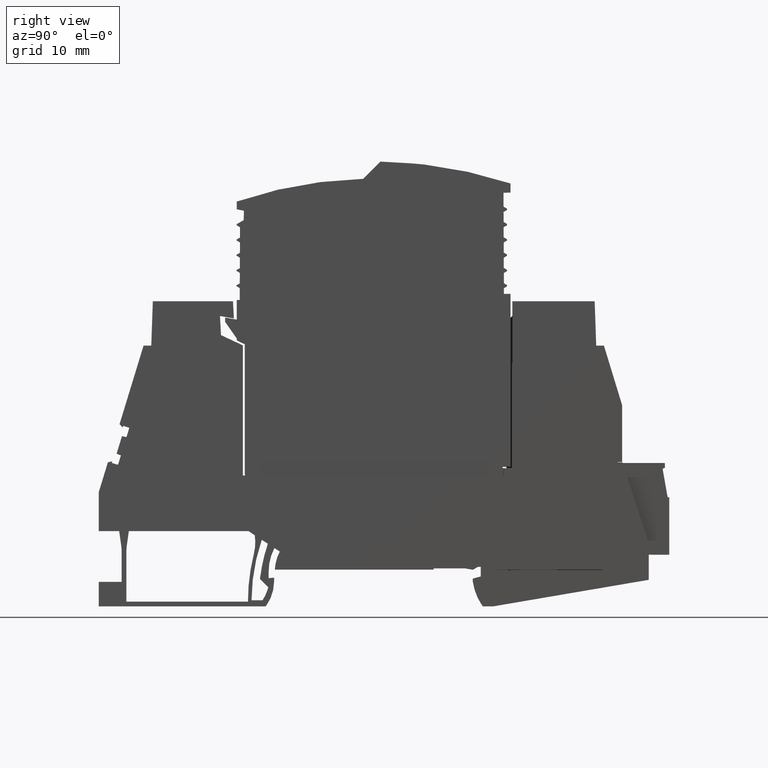
[diagram: clean part render]
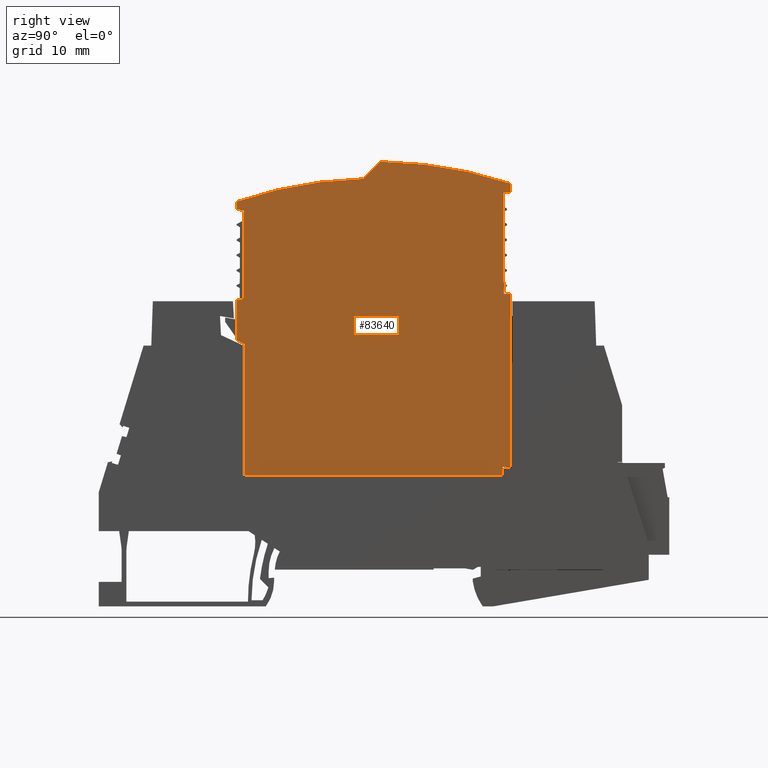
[diagram: same view with one face highlighted and labeled with its STEP entity id]
A machine part, right view. The second image highlights one B-rep face of the part: STEP entity #83640.
In plain terms, the highlighted planar face has unit normal (-1, 0, -0).
Its self-contained STEP definition (entity closure, byte-faithful):
#6830=CARTESIAN_POINT('',(91.7535475959083,81.3818938224016,
-51.096798506925));
#6840=VERTEX_POINT('',#6830);
#7020=CARTESIAN_POINT('',(71.0895625795459,85.097198471085,
-51.0967985078335));
#7030=VERTEX_POINT('',#7020);
#7060=CARTESIAN_POINT('',(69.353547596541,16.1190406819792,
-51.0967985079098));
#7070=DIRECTION('',(-4.39608349825762E-11,-8.17233597831012E-17,1.));
#7080=DIRECTION('',(1.,-3.66047483845538E-27,4.39608349825762E-11));
#7090=AXIS2_PLACEMENT_3D('',#7060,#7070,#7080);
#7100=CIRCLE('',#7090,69.);
#7110=EDGE_CURVE('',#6840,#7030,#7100,.T.);
#7280=CARTESIAN_POINT('',(90.9932978179249,15.060393,-51.0967985069585))
;
#7290=DIRECTION('',(-0.00610861438498844,0.999981342241092,
-2.68458432567398E-13));
#7300=VECTOR('',#7290,1.);
#7310=LINE('',#7280,#7300);
#7320=CARTESIAN_POINT('',(90.6865975744107,65.2672814768194,
-51.096798506972));
#7330=VERTEX_POINT('',#7320);
#7340=CARTESIAN_POINT('',(90.5972988089793,79.8855064438374,
-51.0967985069759));
#7350=VERTEX_POINT('',#7340);
#7360=EDGE_CURVE('',#7330,#7350,#7310,.T.);
#16280=CARTESIAN_POINT('',(46.953547596527,82.8447191382661,
-51.0967985088945));
#16290=VERTEX_POINT('',#16280);
#16440=CARTESIAN_POINT('',(48.1133943602121,82.819223480637,
-51.0967985088435));
#16450=VERTEX_POINT('',#16440);
#16480=CARTESIAN_POINT('',(89.46333,81.9102725441306,-51.0967985070257))
;
#16490=DIRECTION('',(-0.999758485140535,0.0219766100548487,
-4.39502149951476E-11));
#16500=VECTOR('',#16490,1.);
#16510=LINE('',#16480,#16500);
#16520=EDGE_CURVE('',#16450,#16290,#16510,.T.);
#27340=CARTESIAN_POINT('',(90.4533821428892,58.0394530814221,
-51.0967985069822));
#27350=VERTEX_POINT('',#27340);
#27380=CARTESIAN_POINT('',(90.4533821428892,-0.298716370461049,
-51.0967985069822));
#27390=DIRECTION('',(9.89633714980113E-20,1.,8.17233597831055E-17));
#27400=VECTOR('',#27390,1.);
#27410=LINE('',#27380,#27400);
#27420=CARTESIAN_POINT('',(90.4533821428892,36.7562740521626,
-51.0967985069822));
#27430=VERTEX_POINT('',#27420);
#27440=EDGE_CURVE('',#27430,#27350,#27410,.T.);
#82150=CARTESIAN_POINT('',(69.3533810921687,59.0983417776461,
-51.0967985079098));
#82160=DIRECTION('',(-4.39608349825762E-11,-8.17233597831012E-17,1.));
#82170=DIRECTION('',(1.,-1.38715936314506E-40,4.39608349825762E-11));
#82180=AXIS2_PLACEMENT_3D('',#82150,#82160,#82170);
#82190=PLANE('',#82180);
#82200=CARTESIAN_POINT('',(89.46333,36.5562740524421,-51.0967985070257))
;
#82210=DIRECTION('',(-1.,0.,-4.39608349825762E-11));
#82220=VECTOR('',#82210,1.);
#82230=LINE('',#82200,#82220);
#82240=CARTESIAN_POINT('',(90.2533821428892,36.5562740524421,
-51.096798506991));
#82250=VERTEX_POINT('',#82240);
#82260=CARTESIAN_POINT('',(48.2533800414086,36.5562740524421,
-51.0967985088374));
#82270=VERTEX_POINT('',#82260);
#82280=EDGE_CURVE('',#82250,#82270,#82230,.T.);
#82290=ORIENTED_EDGE('',*,*,#82280,.T.);
#82300=CARTESIAN_POINT('',(90.2533821428892,36.7562740518795,
-51.096798506991));
#82310=DIRECTION('',(-4.39608349825762E-11,-8.17233597831012E-17,1.));
#82320=DIRECTION('',(1.,-3.66047483845538E-27,4.39608349825762E-11));
#82330=AXIS2_PLACEMENT_3D('',#82300,#82310,#82320);
#82340=CIRCLE('',#82330,0.2);
#82350=EDGE_CURVE('',#82250,#27430,#82340,.T.);
#82360=ORIENTED_EDGE('',*,*,#82350,.F.);
#82370=ORIENTED_EDGE('',*,*,#27440,.F.);
#82380=CARTESIAN_POINT('',(-0.303280108936463,15.7189264448091,
-51.096798510972));
#82390=DIRECTION('',(-0.90630778703665,-0.4226182617407,
-3.98420816071263E-11));
#82400=VECTOR('',#82390,1.);
#82410=LINE('',#82380,#82400);
#82420=CARTESIAN_POINT('',(91.7533821428892,58.6456530370236,
-51.0967985069251));
#82430=VERTEX_POINT('',#82420);
#82440=EDGE_CURVE('',#82430,#27350,#82410,.T.);
#82450=ORIENTED_EDGE('',*,*,#82440,.T.);
#82460=CARTESIAN_POINT('',(91.7533821428892,15.060393,-51.0967985069251)
);
#82470=DIRECTION('',(1.30111660112045E-18,1.,8.17233597831584E-17));
#82480=VECTOR('',#82470,1.);
#82490=LINE('',#82460,#82480);
#82500=CARTESIAN_POINT('',(91.7533821428892,65.2672814768193,
-51.0967985069251));
#82510=VERTEX_POINT('',#82500);
#82520=EDGE_CURVE('',#82430,#82510,#82490,.T.);
#82530=ORIENTED_EDGE('',*,*,#82520,.F.);
#82540=CARTESIAN_POINT('',(89.46333,65.2672814768193,-51.0967985070257))
;
#82550=DIRECTION('',(1.,-1.30107960715915E-18,4.39608349825762E-11));
#82560=VECTOR('',#82550,1.);
#82570=LINE('',#82540,#82560);
#82580=EDGE_CURVE('',#7330,#82510,#82570,.T.);
#82590=ORIENTED_EDGE('',*,*,#82580,.T.);
#82600=ORIENTED_EDGE('',*,*,#7360,.F.);
#82610=CARTESIAN_POINT('',(74.0896004772997,76.6767349389242,
-51.0967985077016));
#82620=CARTESIAN_POINT('',(79.8203032252118,77.7906707106568,
-51.0967985074496));
#82630=CARTESIAN_POINT('',(85.551005973124,78.9046064823893,
-51.0967985071977));
#82640=CARTESIAN_POINT('',(91.293002060719,80.0207374569807,
-51.0967985069453));
#82650=CARTESIAN_POINT('',(91.3042872775385,80.0229310809148,
-51.0967985069448));
#82660=CARTESIAN_POINT('',(91.3155156972224,80.025113664604,
-51.0967985069443));
#82670=CARTESIAN_POINT('',(91.3267503906682,80.0272974677891,
-51.0967985069438));
#82680=CARTESIAN_POINT('',(91.3379120207396,80.0294670688929,
-51.0967985069433));
#82690=CARTESIAN_POINT('',(91.8397648195023,80.1270173710586,
-51.0967985069213));
#82700=CARTESIAN_POINT('',(92.3305775447745,80.2224217003263,
-51.0967985068997));
#82710=CARTESIAN_POINT('',(98.5520930179607,81.4317618013168,
-51.0967985066262));
#82720=CARTESIAN_POINT('',(104.282795765875,82.5456975730395,
-51.0967985063743));
#82730=CARTESIAN_POINT('',(110.013498513789,83.6596333447623,
-51.0967985061223));
#82740=B_SPLINE_CURVE_WITH_KNOTS('',3,(#82610,#82620,#82630,#82640,
#82650,#82660,#82670,#82680,#82690,#82700,#82710,#82720,#82730),
.UNSPECIFIED.,.F.,.F.,(4,2,3,2,2,4),(-17.476129018529,0.,0.0344397310469
,0.0685019468977892,1.58281876778846,19.2638997990064),.UNSPECIFIED.);
#82750=CARTESIAN_POINT('',(91.2817087210361,80.0185422541219,
-51.0967985069458));
#82760=VERTEX_POINT('',#82750);
#82770=EDGE_CURVE('',#7350,#82760,#82740,.T.);
#82780=ORIENTED_EDGE('',*,*,#82770,.F.);
#82790=CARTESIAN_POINT('',(91.2817087210361,80.0185422541219,
-51.0967985069458));
#82800=CARTESIAN_POINT('',(91.293002060719,80.0207374569807,
-51.0967985069453));
#82810=CARTESIAN_POINT('',(91.3042872775385,80.0229310809148,
-51.0967985069448));
#82820=CARTESIAN_POINT('',(91.3155156972224,80.025113664604,
-51.0967985069443));
#82830=CARTESIAN_POINT('',(91.3267503906682,80.0272974677891,
-51.0967985069438));
#82840=CARTESIAN_POINT('',(91.3379120207396,80.0294670688929,
-51.0967985069433));
#82850=CARTESIAN_POINT('',(91.8397648195023,80.1270173710586,
-51.0967985069213));
#82860=CARTESIAN_POINT('',(92.3305775447745,80.2224217003263,
-51.0967985068997));
#82870=CARTESIAN_POINT('',(92.8213902700467,80.317826029594,
-51.0967985068781));
#82880=B_SPLINE_CURVE_WITH_KNOTS('',3,(#82790,#82800,#82810,#82820,
#82830,#82840,#82850,#82860,#82870),.UNSPECIFIED.,.F.,.F.,(4,3,2,4),(0.,
0.0344397310469,0.0685019468977892,1.58281876778846),.UNSPECIFIED.);
#82890=CARTESIAN_POINT('',(91.7535475959083,80.1102584404833,
-51.096798506925));
#82900=VERTEX_POINT('',#82890);
#82910=EDGE_CURVE('',#82760,#82900,#82880,.T.);
#82920=ORIENTED_EDGE('',*,*,#82910,.F.);
#82930=CARTESIAN_POINT('',(91.7535475959083,15.060393,-51.0967985069251)
);
#82940=DIRECTION('',(0.,1.,8.17233597831012E-17));
#82950=VECTOR('',#82940,1.);
#82960=LINE('',#82930,#82950);
#82970=EDGE_CURVE('',#82900,#6840,#82960,.T.);
#82980=ORIENTED_EDGE('',*,*,#82970,.F.);
#82990=ORIENTED_EDGE('',*,*,#7110,.F.);
#83000=CARTESIAN_POINT('',(-0.246382405799025,156.43314345643,
-51.0967985109694));
#83010=DIRECTION('',(-0.707106781186548,0.707106781186547,
-3.10849467356606E-11));
#83020=VECTOR('',#83010,1.);
#83030=LINE('',#83000,#83020);
#83040=CARTESIAN_POINT('',(68.2758094010274,87.9109516496035,
-51.0967985079571));
#83050=VERTEX_POINT('',#83040);
#83060=EDGE_CURVE('',#7030,#83050,#83030,.T.);
#83070=ORIENTED_EDGE('',*,*,#83060,.F.);
#83080=CARTESIAN_POINT('',(69.3535475959079,16.1190406819792,
-51.0967985079098));
#83090=DIRECTION('',(-4.39608349825762E-11,-8.17233597831012E-17,1.));
#83100=DIRECTION('',(-0.0179722037016301,0.999838486903813,
-7.89991371040218E-13));
#83110=AXIS2_PLACEMENT_3D('',#83080,#83090,#83100);
#83120=CIRCLE('',#83110,71.8);
#83130=CARTESIAN_POINT('',(46.953547596527,84.3354609928379,
-51.0967985088945));
#83140=VERTEX_POINT('',#83130);
#83150=EDGE_CURVE('',#83050,#83140,#83120,.T.);
#83160=ORIENTED_EDGE('',*,*,#83150,.F.);
#83170=CARTESIAN_POINT('',(46.953547596527,15.060393,-51.0967985088945))
;
#83180=DIRECTION('',(0.,-1.,-8.17233597831012E-17));
#83190=VECTOR('',#83180,1.);
#83200=LINE('',#83170,#83190);
#83210=EDGE_CURVE('',#83140,#16290,#83200,.T.);
#83220=ORIENTED_EDGE('',*,*,#83210,.F.);
#83230=ORIENTED_EDGE('',*,*,#16520,.T.);
#83240=CARTESIAN_POINT('',(47.7372799849008,-0.297811356163271,
-51.09679850886));
#83250=DIRECTION('',(-0.0045250714888958,-0.9999897618116,
-1.99007643530793E-13));
#83260=VECTOR('',#83250,1.);
#83270=LINE('',#83240,#83260);
#83280=CARTESIAN_POINT('',(48.0384948729874,66.2672815779609,
-51.0967985088468));
#83290=VERTEX_POINT('',#83280);
#83300=EDGE_CURVE('',#16450,#83290,#83270,.T.);
#83310=ORIENTED_EDGE('',*,*,#83300,.F.);
#83320=CARTESIAN_POINT('',(47.6622403753955,66.2672815779609,
-51.0967985088633));
#83330=DIRECTION('',(1.,-1.38715936314506E-40,4.39608349825762E-11));
#83340=VECTOR('',#83330,1.);
#83350=LINE('',#83320,#83340);
#83360=CARTESIAN_POINT('',(46.9533821428929,66.2672815779609,
-51.0967985088945));
#83370=VERTEX_POINT('',#83360);
#83380=EDGE_CURVE('',#83370,#83290,#83350,.T.);
#83390=ORIENTED_EDGE('',*,*,#83380,.T.);
#83400=CARTESIAN_POINT('',(46.9533821428929,-0.298716370461049,
-51.0967985088945));
#83410=DIRECTION('',(2.88889490940621E-34,-1.,-8.17233597831012E-17));
#83420=VECTOR('',#83410,1.);
#83430=LINE('',#83400,#83420);
#83440=CARTESIAN_POINT('',(46.953382142893,37.9562740523891,
-51.0967985088945));
#83450=VERTEX_POINT('',#83440);
#83460=EDGE_CURVE('',#83370,#83450,#83430,.T.);
#83470=ORIENTED_EDGE('',*,*,#83460,.F.);
#83480=CARTESIAN_POINT('',(89.46333,37.9562740523891,-51.0967985070257))
;
#83490=DIRECTION('',(1.,-9.8963342417393E-20,4.39608349825762E-11));
#83500=VECTOR('',#83490,1.);
#83510=LINE('',#83480,#83500);
#83520=CARTESIAN_POINT('',(48.2533800414086,37.9562740523891,
-51.0967985088374));
#83530=VERTEX_POINT('',#83520);
#83540=EDGE_CURVE('',#83450,#83530,#83510,.T.);
#83550=ORIENTED_EDGE('',*,*,#83540,.F.);
#83560=CARTESIAN_POINT('',(48.2533800414086,15.060393,-51.0967985088374)
);
#83570=DIRECTION('',(-6.27417943715463E-16,1.,8.17233597555194E-17));
#83580=VECTOR('',#83570,1.);
#83590=LINE('',#83560,#83580);
#83600=EDGE_CURVE('',#82270,#83530,#83590,.T.);
#83610=ORIENTED_EDGE('',*,*,#83600,.T.);
#83620=EDGE_LOOP('',(#83610,#83550,#83470,#83390,#83310,#83230,#83220,
#83160,#83070,#82990,#82980,#82920,#82780,#82600,#82590,#82530,#82450,
#82370,#82360,#82290));
#83630=FACE_OUTER_BOUND('',#83620,.T.);
#83640=ADVANCED_FACE('',(#83630),#82190,.F.);